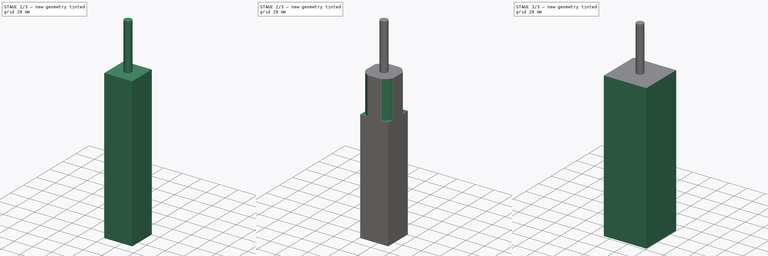
[diagram: build sequence overview — one tinted view per stage of 3, left to right]
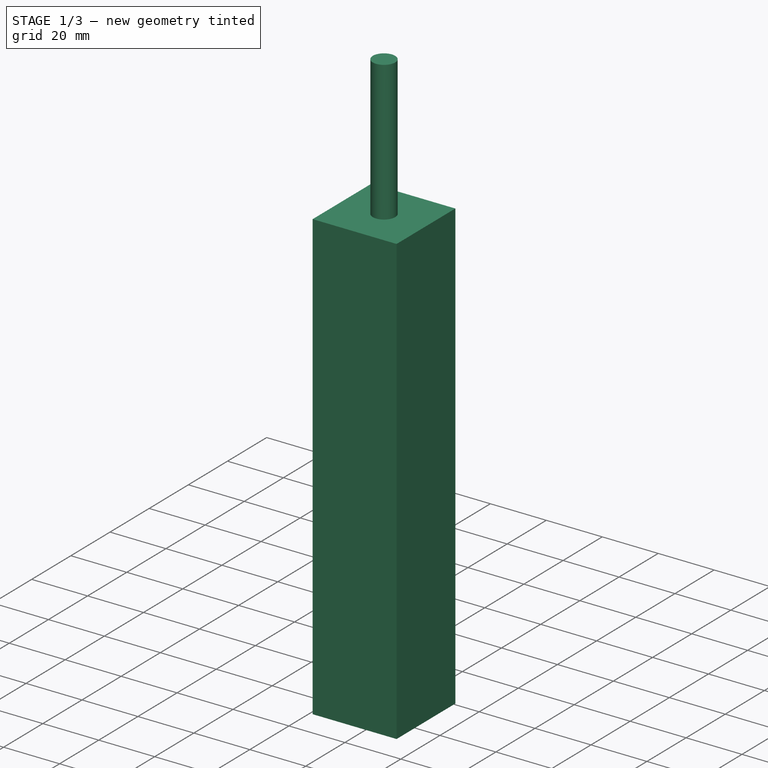
[diagram: stage 1 of 3 — iso view after this stage's code; geometry added in this stage tinted green]
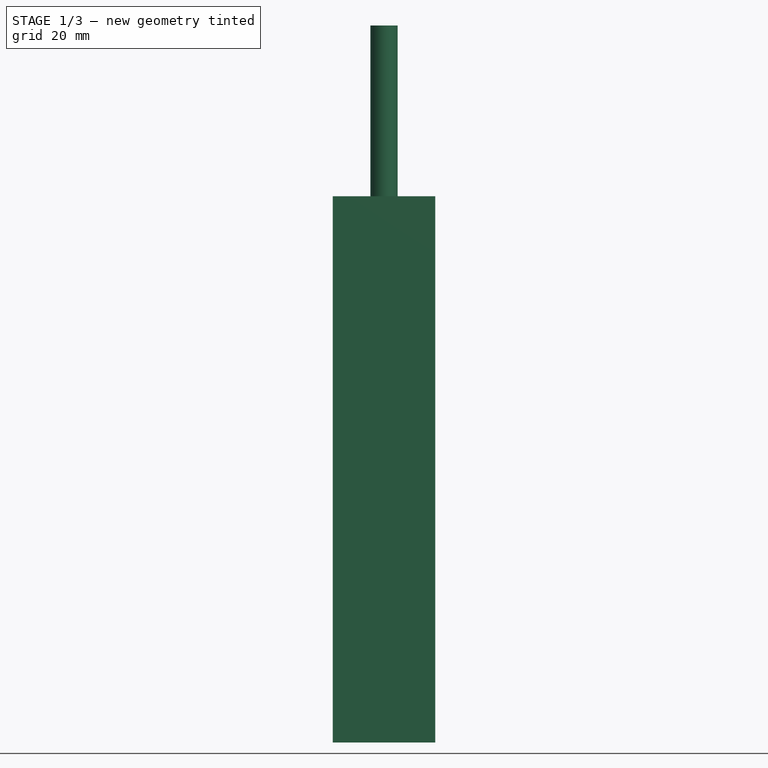
[diagram: stage 1 of 3 — front view after this stage's code; geometry added in this stage tinted green]
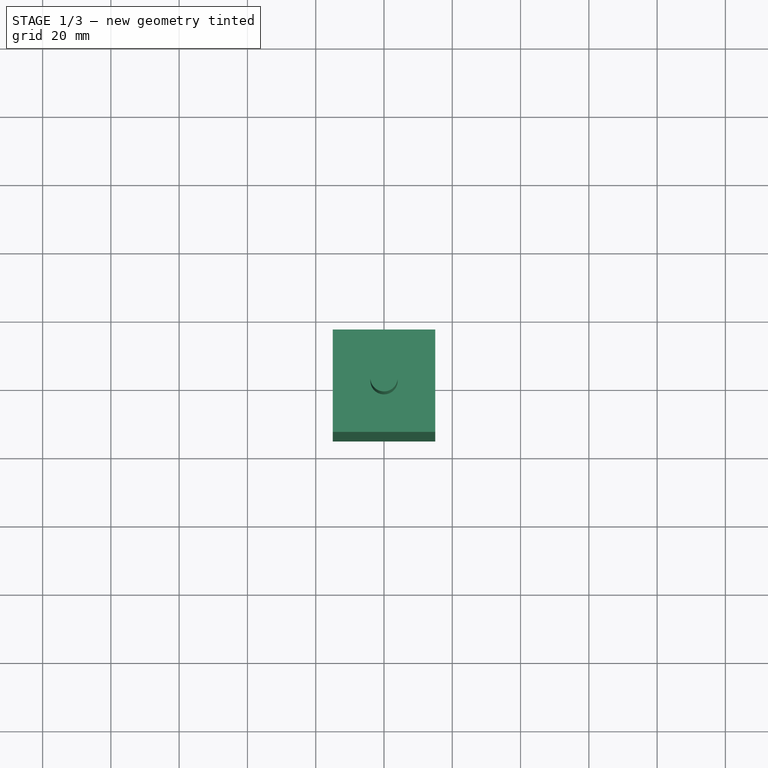
[diagram: stage 1 of 3 — top view after this stage's code; geometry added in this stage tinted green]
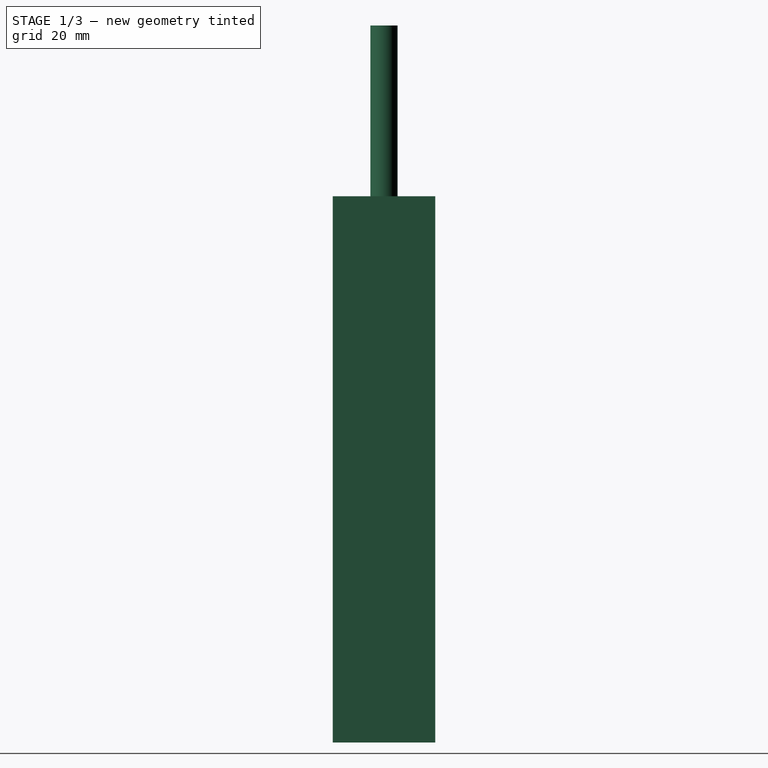
[diagram: stage 1 of 3 — right view after this stage's code; geometry added in this stage tinted green]
FCSTD DOCUMENT  (FreeCAD 1.0R39109 (Git))
Label: MonitorRod
License: All rights reserved
LicenseURL: http://en.wikipedia.org/wiki/All_rights_reserved
objects: Path::FeaturePython×6, Part::FeaturePython×4, Sketcher::SketchObject×3, App::DocumentObjectGroup×3, PartDesign::Pad×1, PartDesign::Pocket×1, PartDesign::Body×1, App::FeaturePython×1
note: 19 computed .brp shape members not serialized (recipe doc carries the construction recipe); baked Part::Feature solids carry a one-line shape summary decoded from their .brp

FEATURE [Sketcher::SketchObject] Sketch
  ArcFitTolerance = 1e-06
  AttachmentSupport = -> [XY_Plane]
  FullyConstrained = true
  MakeInternals = false
  MapMode = 5
  sketch-geometry (5):
    g0: LineSegment StartX=-15 StartY=-15 StartZ=0 EndX=15 EndY=-15 EndZ=0
    g1: LineSegment StartX=15 StartY=-15 StartZ=0 EndX=15 EndY=15 EndZ=0
    g2: LineSegment StartX=15 StartY=15 StartZ=0 EndX=-15 EndY=15 EndZ=0
    g3: LineSegment StartX=-15 StartY=15 StartZ=0 EndX=-15 EndY=-15 EndZ=0
    g4: GeomPoint [constr] X=0 Y=0 Z=0
  constraints (12):
    c: Coincident(g0,g1)
    c: Coincident(g1,g2)
    c: Coincident(g2,g3)
    c: Coincident(g3,g0)
    c: Horizontal(g0)
    c: Horizontal(g2)
    c: Vertical(g1)
    c: Vertical(g3)
    c: Symmetric(g2,g0,g4)
    c: Distance(g1,g3) = 30
    c: Distance(g0,g2) = 30
    c: Coincident(g4,g-1)
FEATURE [PartDesign::Pad] Pad
  Direction = (0,0,1)
  Length = 160
  Length2 = 10
  Profile = -> Sketch
  ReferenceAxis = -> Sketch [N_Axis]
  Refine = true
  Reversed = true
  Suppressed = false
  Type = 0
FEATURE [Path::FeaturePython] _mm_Endmill  label="6mm Endmill001"  # Path/CAM operation (typed FeaturePython)
  HorizFeed = 3.33333
  HorizRapid = 0
  SpindleDir = 0
  SpindleSpeed = 10000
  Tool = -> ToolBit001
  ToolNumber = 2
  VertFeed = 3.33333
  VertRapid = 0
  expr: HorizRapid = SetupSheet.HorizRapid
  expr: VertRapid = SetupSheet.VertRapid
FEATURE [Sketcher::SketchObject] Sketch002
  ArcFitTolerance = 1e-06
  AttachmentSupport = -> [Clone]
  ExternalGeometry = -> [Clone]
  FullyConstrained = true
  MakeInternals = false
  MapMode = 5
  Placement = pos=(0,0,-40) rot=(0,0,1;0rad)
  sketch-geometry (2):
    g0: Circle CenterX=0 CenterY=0 CenterZ=0 NormalX=0 NormalY=0 NormalZ=1 AngleXU=0 Radius=16.5
    g1: Circle CenterX=0 CenterY=0 CenterZ=0 NormalX=0 NormalY=0 NormalZ=1 AngleXU=0 Radius=23.5
  constraints (4):
    c: Coincident(g0,g-1)
    c: PointOnObject(g-3,g0)
    c: Diameter(g1) = 47
    c: Coincident(g1,g0)
FEATURE [App::DocumentObjectGroup] Model
  Group = -> [Clone,Sketch002]
FEATURE [Part::FeaturePython] ToolBit  label="8mm Endmill"  # Path/CAM toolbit (typed FeaturePython)
  BitPropertyNames = Chipload | CuttingEdgeHeight | Diameter | Flutes | Length | Material | ShankDiameter | SpindleDirection
  BitShape = <path>
  Chipload = 0
  CuttingEdgeHeight = 30
  Diameter = 8
  File = <userpath>/Desktop/CNC/ToolBit/Bit/8mm_Endmill.fctb
  Flutes = 0
  Length = 50
  Material = 0
  ShankDiameter = 8
  ShapeName = endmill
  SpindleDirection = 0
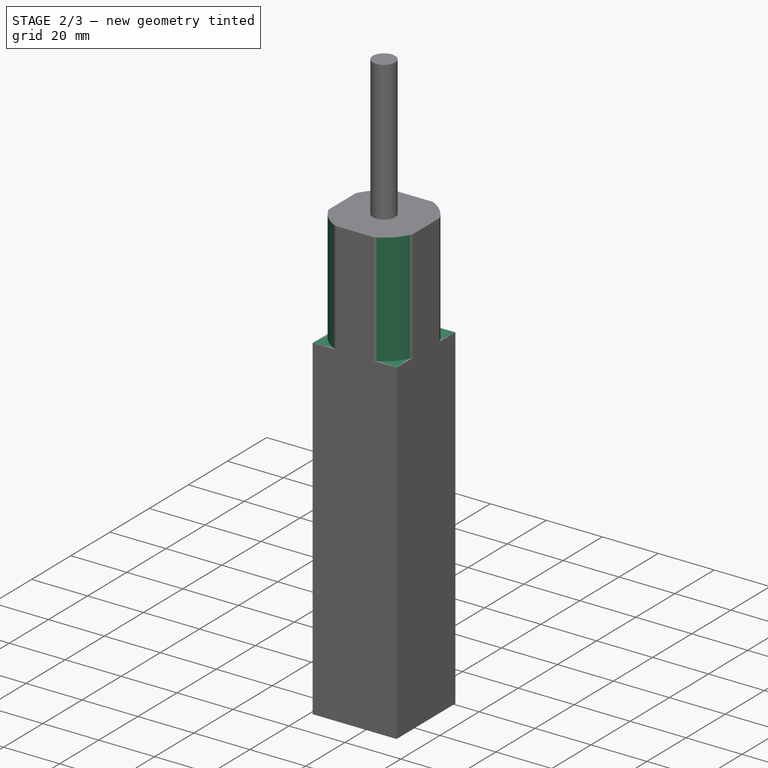
[diagram: stage 2 of 3 — iso view after this stage's code; geometry added in this stage tinted green]
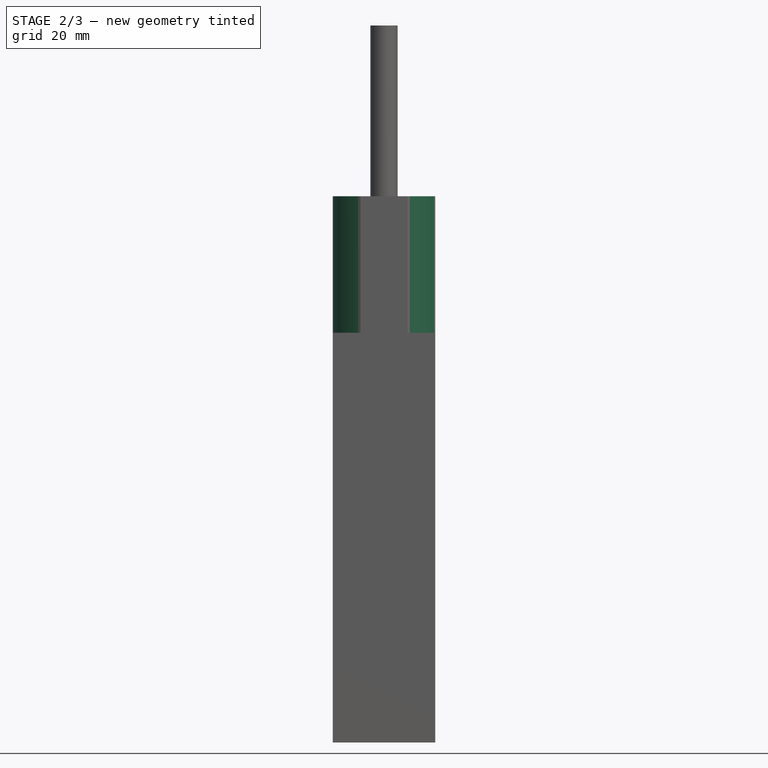
[diagram: stage 2 of 3 — front view after this stage's code; geometry added in this stage tinted green]
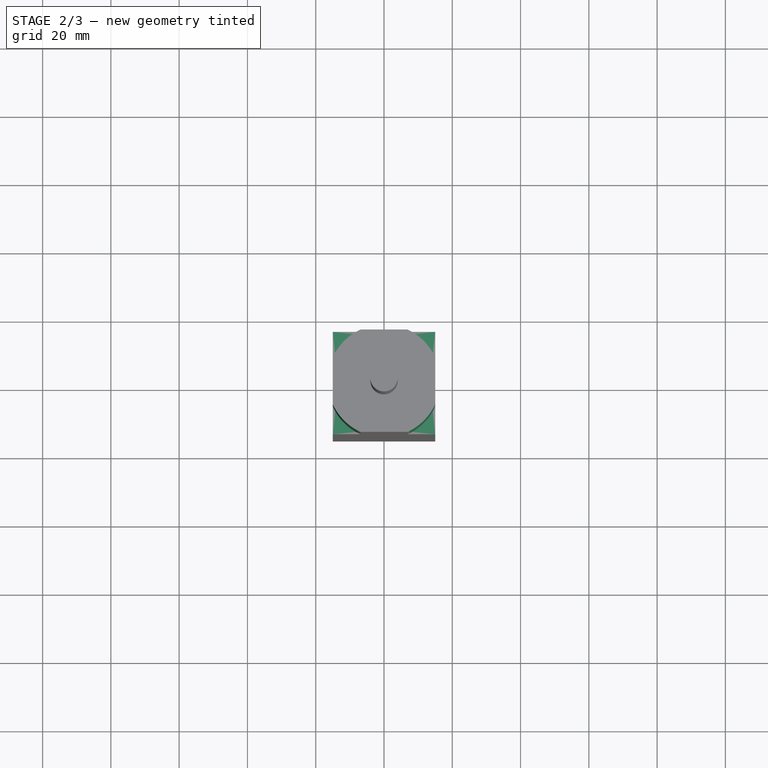
[diagram: stage 2 of 3 — top view after this stage's code; geometry added in this stage tinted green]
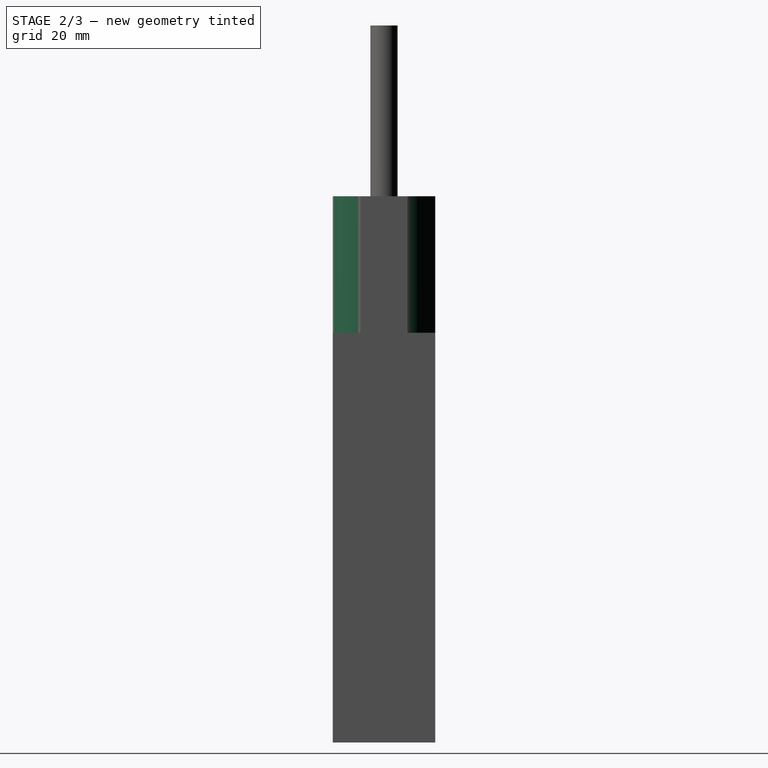
[diagram: stage 2 of 3 — right view after this stage's code; geometry added in this stage tinted green]
FEATURE [Sketcher::SketchObject] Sketch001
  ArcFitTolerance = 1e-06
  AttachmentSupport = -> [Pad]
  ExternalGeometry = -> [Pad]
  FullyConstrained = true
  MakeInternals = false
  MapMode = 5
  sketch-geometry (2):
    g0: Circle CenterX=0 CenterY=0 CenterZ=0 NormalX=0 NormalY=0 NormalZ=1 AngleXU=0 Radius=16.5
    g1: Circle CenterX=0 CenterY=0 CenterZ=0 NormalX=0 NormalY=0 NormalZ=1 AngleXU=0 Radius=21.2132
  constraints (4):
    c: Coincident(g0,g-1)
    c: Diameter(g0) = 33
    c: Coincident(g1,g0)
    c: PointOnObject(g-6,g1)
FEATURE [PartDesign::Pocket] Pocket
  BaseFeature = -> Pad
  Direction = (0,0,-1)
  Length = 40
  Length2 = 5
  Profile = -> Sketch001
  ReferenceAxis = -> Sketch001 [N_Axis]
  Refine = true
  Suppressed = false
  Type = 0
FEATURE [PartDesign::Body] Body
  AllowCompound = false
  Group = -> [Sketch,Pad,Sketch001,Pocket]
  Origin = -> Origin
  Tip = -> Pocket
FEATURE [App::FeaturePython] SetupSheet  # Path/CAM operation (typed FeaturePython)
  ClearanceHeightExpression = OpStockZMax+SetupSheet.ClearanceHeightOffset
  ClearanceHeightOffset = 5
  CoolantMode = 0
  CoolantModes = None | Flood | Mist
  FinalDepthExpression = OpFinalDepth
  HorizRapid = 0
  SafeHeightExpression = OpStockZMax+SetupSheet.SafeHeightOffset
  SafeHeightOffset = 3
  StartDepthExpression = OpStartDepth
  StepDownExpression = OpToolDiameter
  VertRapid = 0
FEATURE [Part::FeaturePython] Clone  label="Model-Body"  # Draft clone (typed FeaturePython)
  AttacherType = Attacher::AttachEngine3D
  Fuse = false
  Objects = -> [Body]
  PathResource = Model
  Scale = (1,1,1)
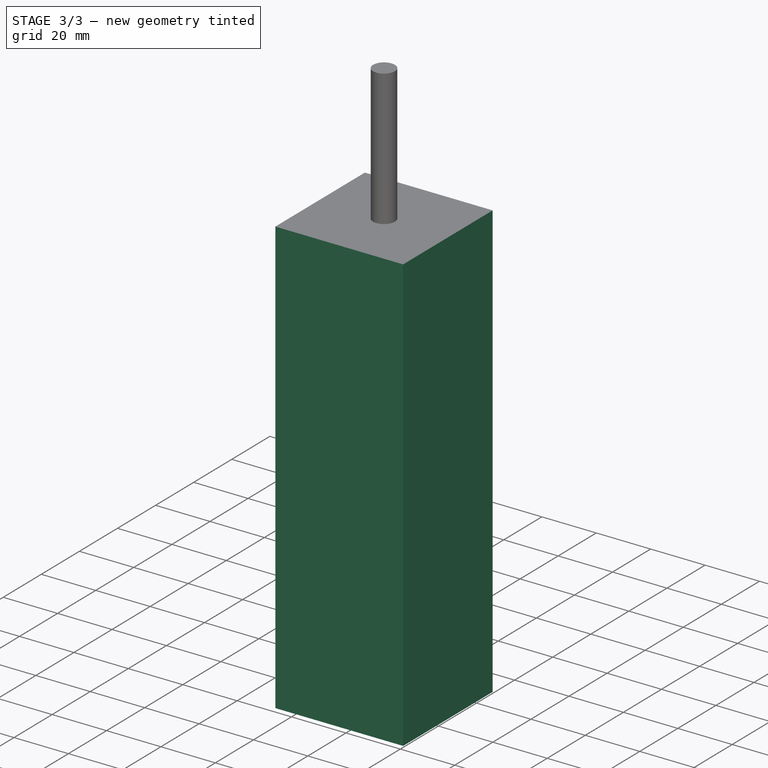
[diagram: stage 3 of 3 — iso view after this stage's code; geometry added in this stage tinted green]
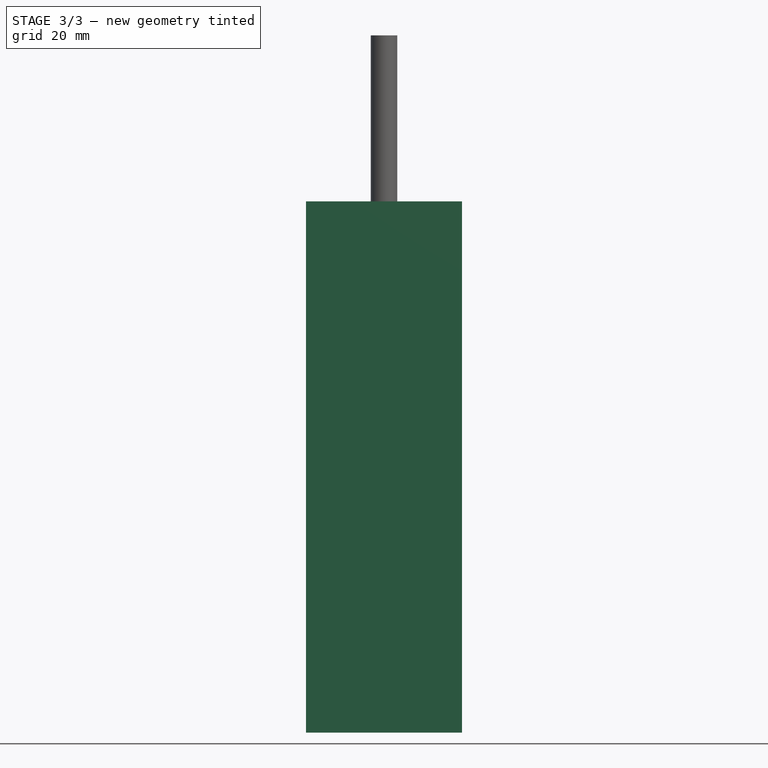
[diagram: stage 3 of 3 — front view after this stage's code; geometry added in this stage tinted green]
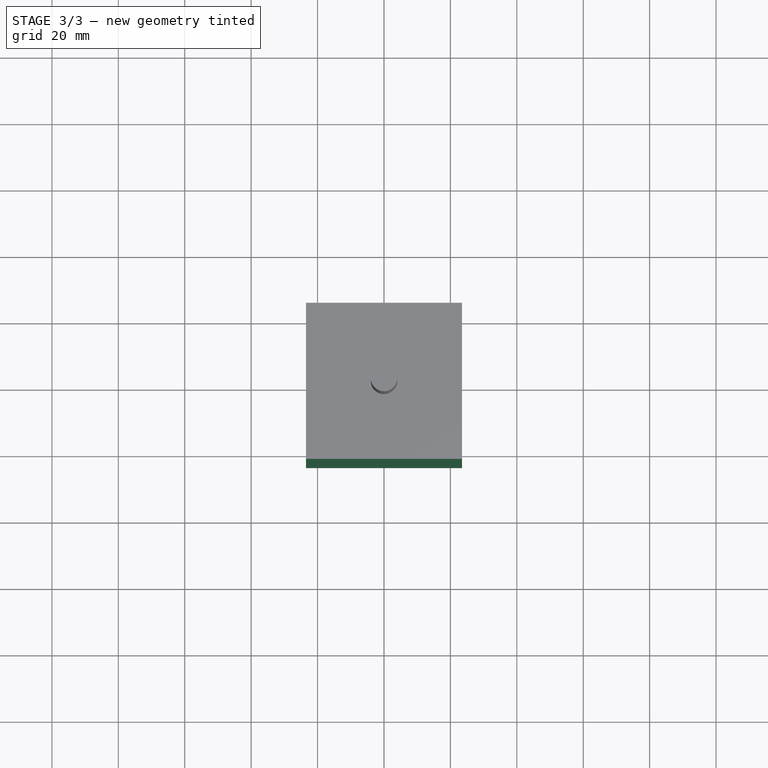
[diagram: stage 3 of 3 — top view after this stage's code; geometry added in this stage tinted green]
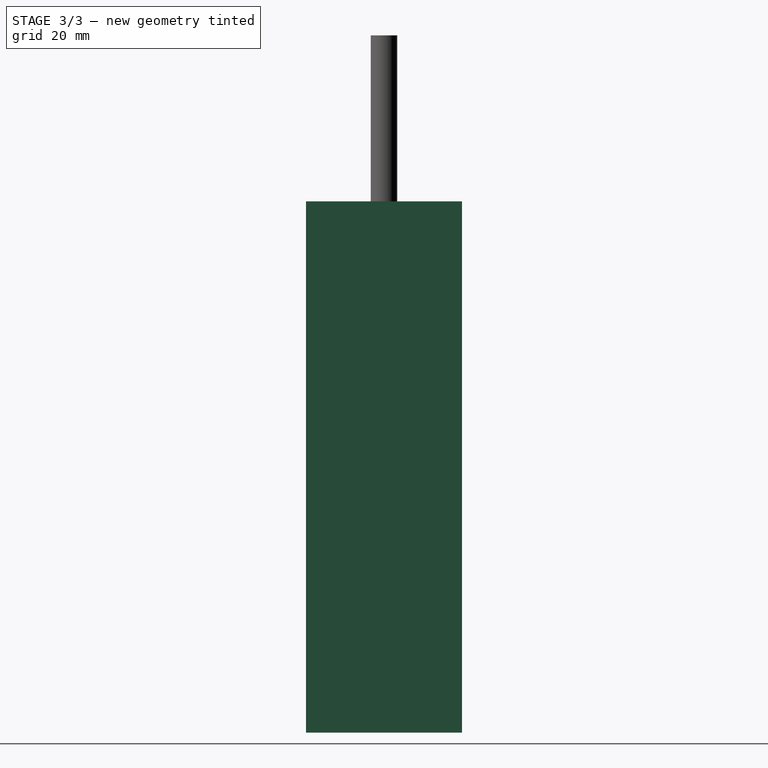
[diagram: stage 3 of 3 — right view after this stage's code; geometry added in this stage tinted green]
FEATURE [Part::FeaturePython] ToolBit001  label="6mm Endmill"  # Path/CAM toolbit (typed FeaturePython)
  BitPropertyNames = Chipload | CuttingEdgeHeight | Diameter | Flutes | Length | Material | ShankDiameter | SpindleDirection
  BitShape = <path>
  Chipload = 0
  CuttingEdgeHeight = 30
  Diameter = 6
  File = <path>
  Flutes = 0
  Length = 50
  Material = 0
  ShankDiameter = 6
  ShapeName = endmill
  SpindleDirection = 0
FEATURE [Path::FeaturePython] _mm_Endmill001  label="8mm Endmill001"  # Path/CAM operation (typed FeaturePython)
  HorizFeed = 3.33333
  HorizRapid = 0
  SpindleDir = 0
  SpindleSpeed = 10000
  Tool = -> ToolBit
  ToolNumber = 3
  VertFeed = 3.33333
  VertRapid = 0
  expr: HorizRapid = SetupSheet.HorizRapid
  expr: VertRapid = SetupSheet.VertRapid
FEATURE [App::DocumentObjectGroup] Tools
  Group = -> [_mm_Endmill,_mm_Endmill001]
FEATURE [Path::FeaturePython] Adaptive  # Path/CAM operation (typed FeaturePython)
  Active = false
  Base = -> [Sketch002]
  ClearanceHeight = 5
  CoolantMode = 0
  CycleTime = 00:56:57
  ExtensionCorners = true
  ExtensionLengthDefault = 4
  FinalDepth = -40
  FinishDepth = 0
  FinishingProfile = true
  ForceInsideOut = true
  HelixAngle = 5
  HelixConeAngle = 0
  HelixDiameterLimit = 2
  KeepToolDownRatio = 1
  LiftDistance = 0
  OpFinalDepth = -40
  OpStartDepth = 0
  OpStockZMax = 0
  OpStockZMin = -160
  OpToolDiameter = 8
  OperationType = 0
  SafeHeight = 3
  Side = 0
  StartDepth = 0
  StepDown = 16
  StepOver = 10
  StockToLeave = 0
  StopProcessing = false
  Stopped = false
  Tolerance = 0.1
  ToolController = -> _mm_Endmill001
  UseHelixArcs = false
  UseOutline = false
  expr: ClearanceHeight = OpStockZMax + SetupSheet.ClearanceHeightOffset
  expr: ExtensionLengthDefault = OpToolDiameter / 2
  expr: FinalDepth = OpFinalDepth
  expr: SafeHeight = OpStockZMax + SetupSheet.SafeHeightOffset
  expr: StartDepth = OpStartDepth
  expr: StepDown = OpToolDiameter * 2
FEATURE [Part::FeaturePython] Stock  # WARN: FeaturePython — macro-defined, semantics opaque (R4)
  Height = 160
  Length = 46.99
  Placement = pos=(-23.4909,-23.4977,-160) rot=(0,0,1;0rad)
  StockType = CreateBox
  Width = 47
FEATURE [Path::FeaturePython] Profile  # Path/CAM operation (typed FeaturePython)
  Active = true
  AreaParams:
    Tolerance = 1e-07
    FitArcs = True
    Simplify = False
    CleanDistance = 0.0
    Accuracy = 0.01
    Unit = 1.0
    MinArcPoints = 4
    MaxArcPoints = 100
    ClipperScale = 10000000.0
    Fill = 0
    Coplanar = 0
    Reorient = True
    Outline = False
    Explode = False
    OpenMode = 0
    Deflection = 0.01
    SubjectFill = 0
    ClipFill = 0
    Offset = 4.0
    ExtraPass = 0
    Stepover = 0.0
    LastStepover = 0.0
    JoinType = 0
    EndType = 0
    MiterLimit = 2.0
    RoundPrecision = 0.0
    PocketMode = 0
    ToolRadius = 1.0
    PocketExtraOffset = 0.0
    PocketStepover = 0.0
    PocketLastStepover = 0.0
    FromCenter = False
    Angle = 45.0
    AngleShift = 0.0
    Shift = 0.0
    Thicken = False
    SectionCount = -1
    Stepdown = 1.0
    SectionOffset = 0.0
    SectionTolerance = 1e-06
    SectionMode = 2
    Project = False
  Base = -> [Sketch002]
  ClearanceHeight = 5
  CoolantMode = 0
  CycleTime = 00:17:54
  Direction = 0
  FinalDepth = -30
  HandleMultipleFeatures = 0
  JoinType = 0
  MiterLimit = 0.1
  OffsetExtra = 0
  OpFinalDepth = -40
  OpStartDepth = 0
  OpStockZMax = 0
  OpStockZMin = -160
  OpToolDiameter = 8
  PathParams = {'orientation': 1, 'feedrate': 3.3333333333333335, 'feedrate_v': 3.3333333333333335, 'verbose': True, 'resume_height': 3.0, 'retraction': 5.0, 'return_end': True, 'preamble': False}
  SafeHeight = 3
  Side = 0
  SplitArcs = false
  StartDepth = 0
  StartPoint = (0,0,0)
  StepDown = 1
  ToolController = -> _mm_Endmill001
  UseComp = true
  UseStartPoint = false
  processCircles = false
  processHoles = false
  processPerimeter = true
  expr: ClearanceHeight = OpStockZMax + SetupSheet.ClearanceHeightOffset
  expr: FinalDepth = OpFinalDepth + 10 mm
  expr: SafeHeight = OpStockZMax + SetupSheet.SafeHeightOffset
  expr: StartDepth = OpStartDepth
  expr: StepDown = OpToolDiameter / 8
FEATURE [Path::FeaturePython] RampEntryDressup  # Path/CAM operation (typed FeaturePython)
  Angle = 5
  Base = -> Profile
  CustomFeedRate = 0
  DressupStartDepth = 0
  Method = 3
  RampFeedRate = 0
  UseStartDepth = false
FEATURE [App::DocumentObjectGroup] Operations
  Group = -> [Adaptive,RampEntryDressup]
FEATURE [Path::FeaturePython] Job  # Path/CAM operation (typed FeaturePython)
  CycleTime = 00:17:54
  Fixtures = G54
  GeometryTolerance = 0.01
  JobType = 0
  Model = -> Model
  Operations = -> Operations
  OrderOutputBy = 0
  PostProcessor = 11
  PostProcessorArgs = --bcnc
  PostProcessorOutputFile = %D/%d
  SetupSheet = -> SetupSheet
  SplitOutput = false
  Stock = -> Stock
  Tools = -> Tools
note: 3 file-system paths scrubbed to <path> (originals preserved in the JSON sidecar)
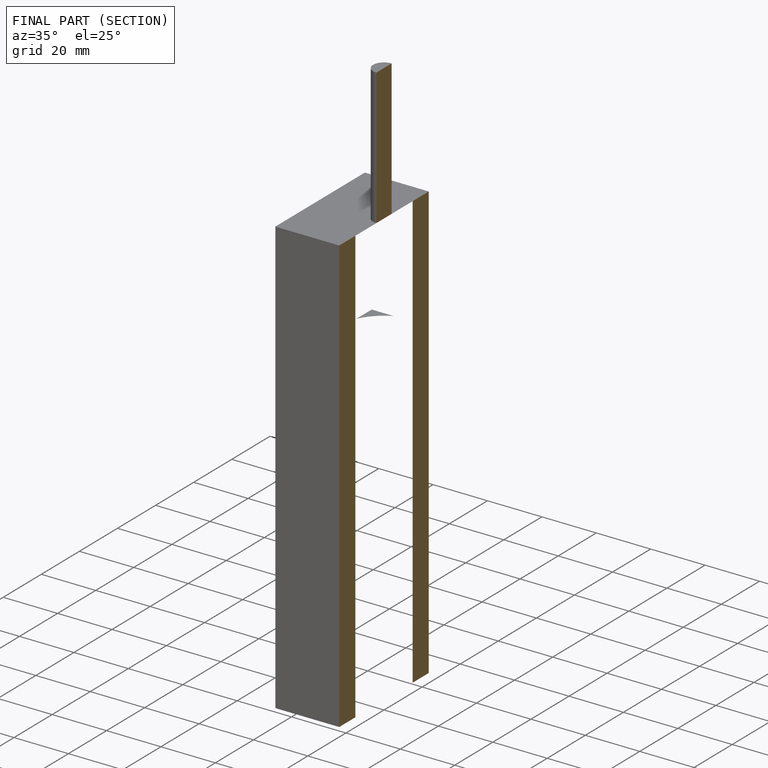
[diagram: finished part — half-section view (interior)]
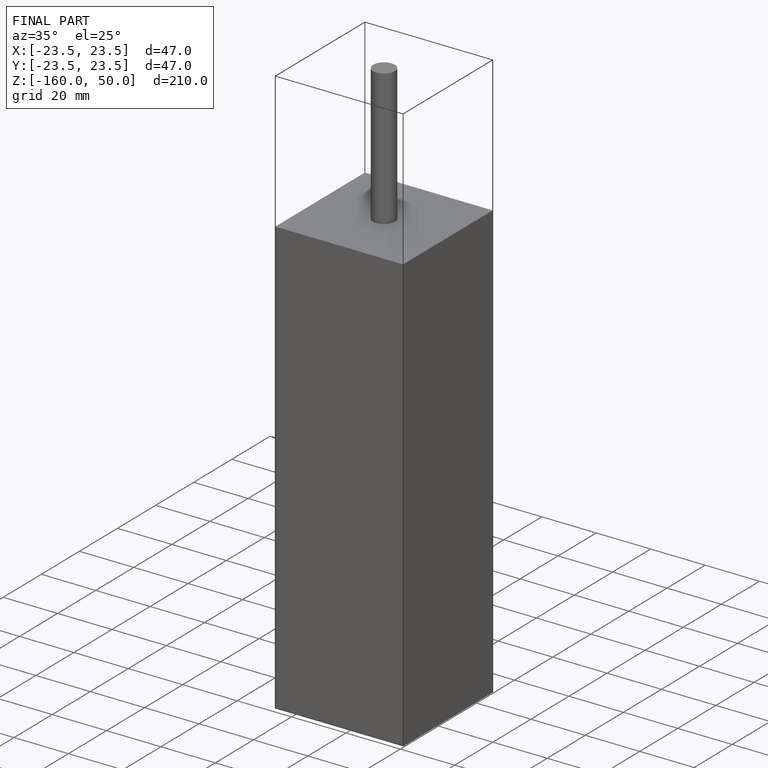
[diagram: finished part — iso view with bounding-box wireframe]
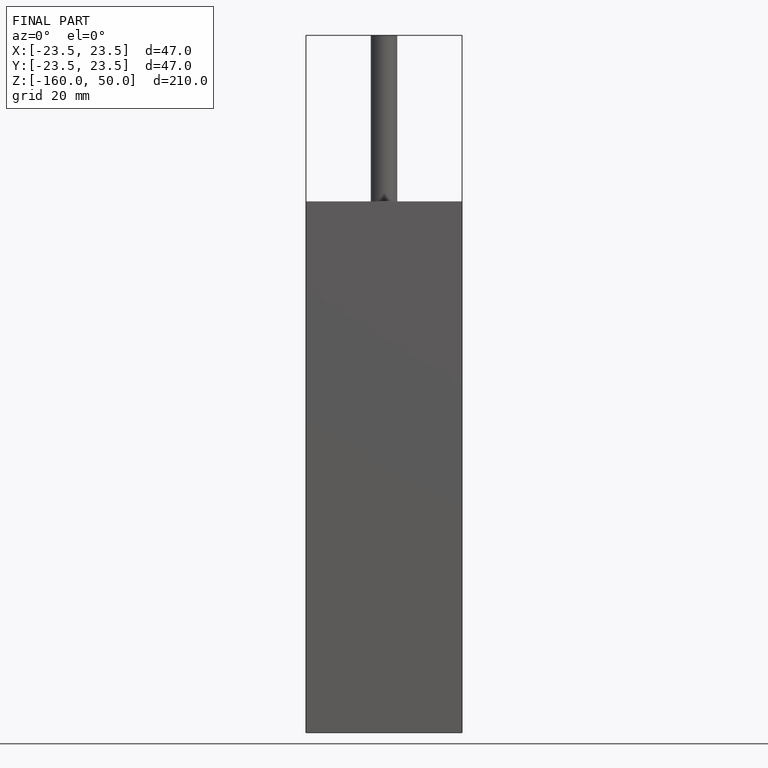
[diagram: finished part — front view with bounding-box wireframe]
